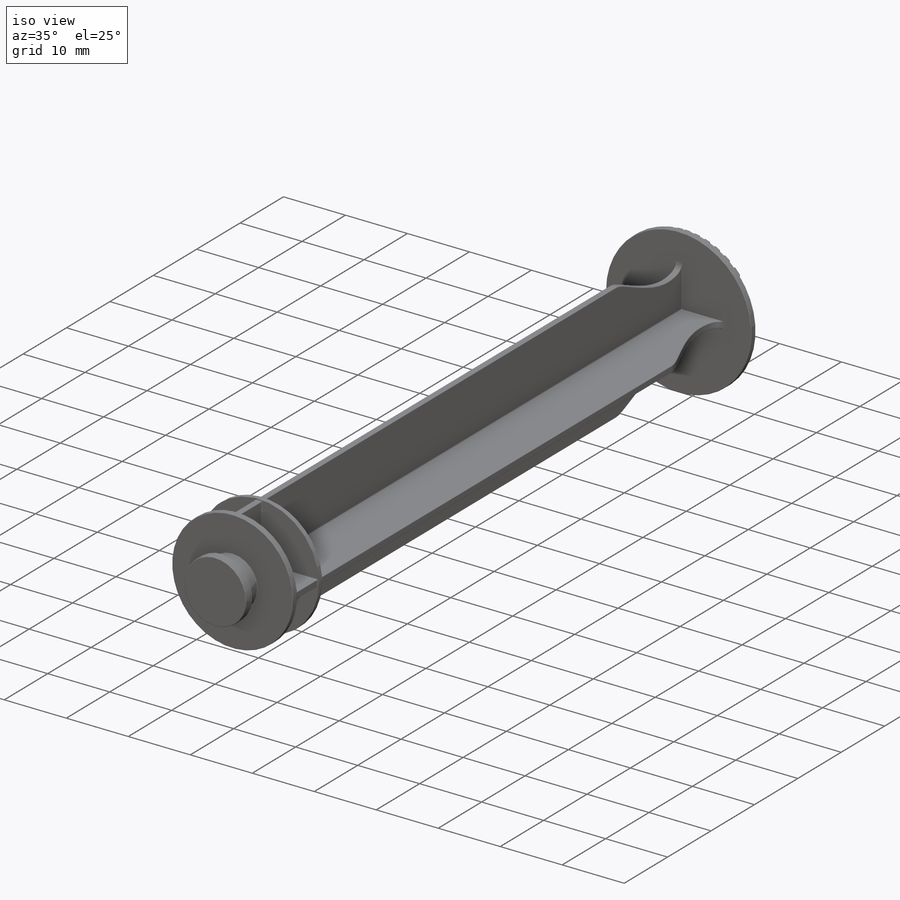
[diagram: iso view]
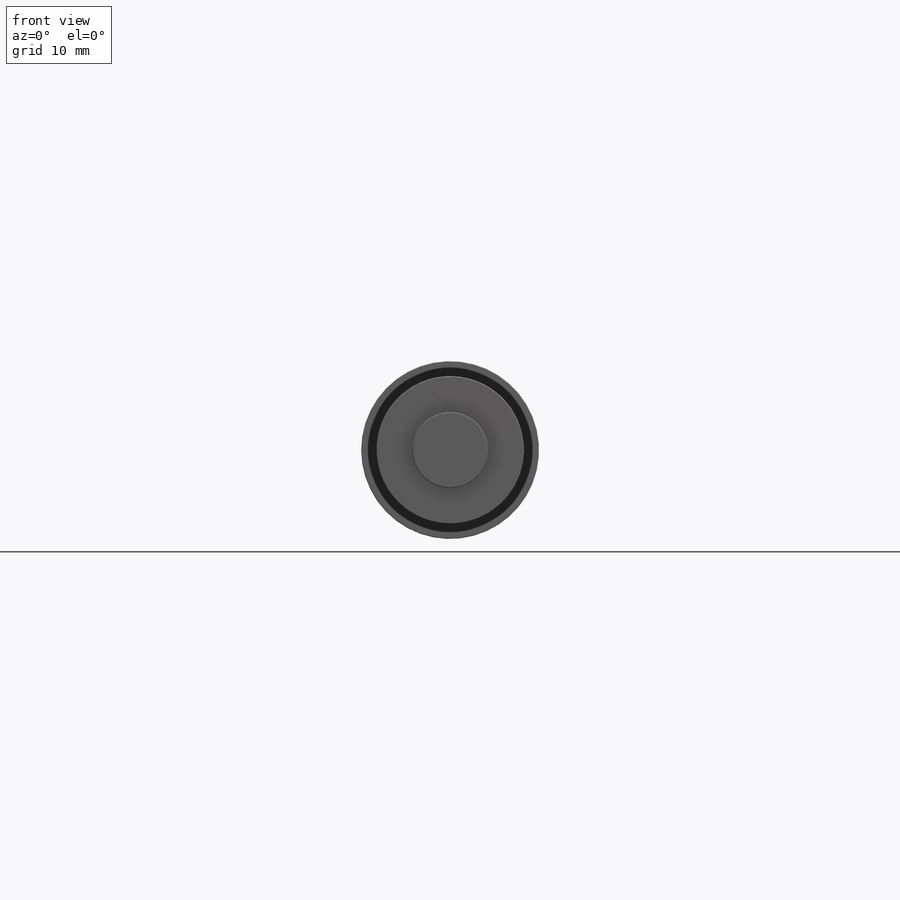
[diagram: front view]
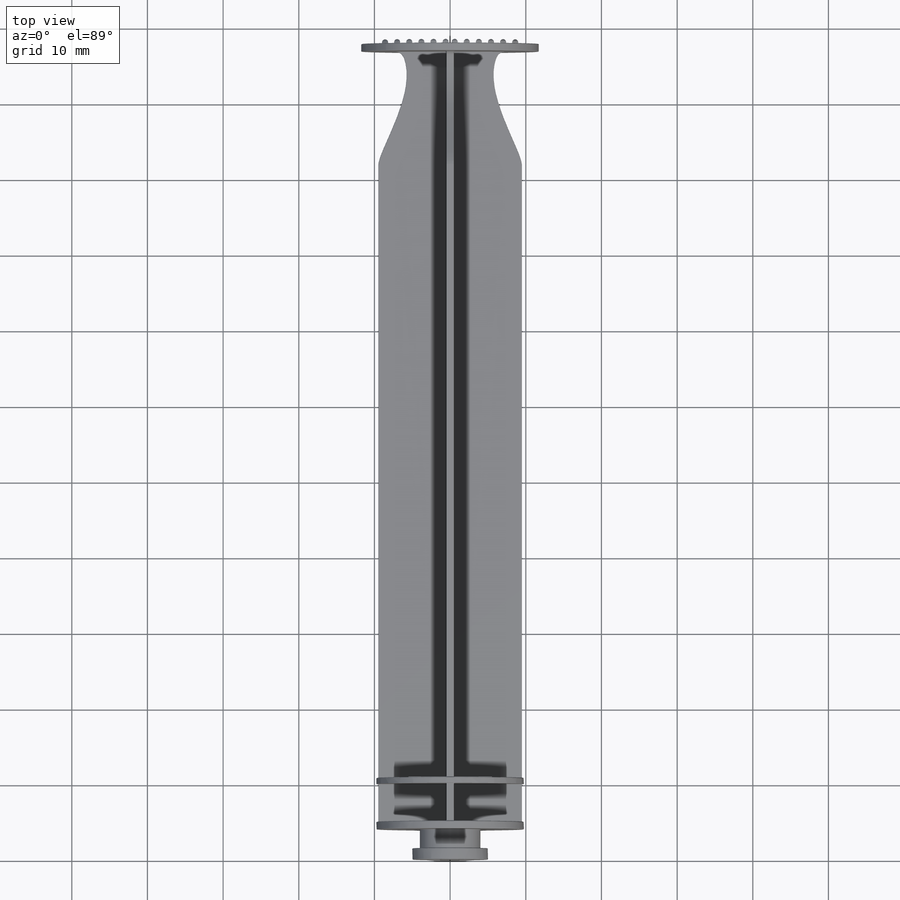
[diagram: top view]
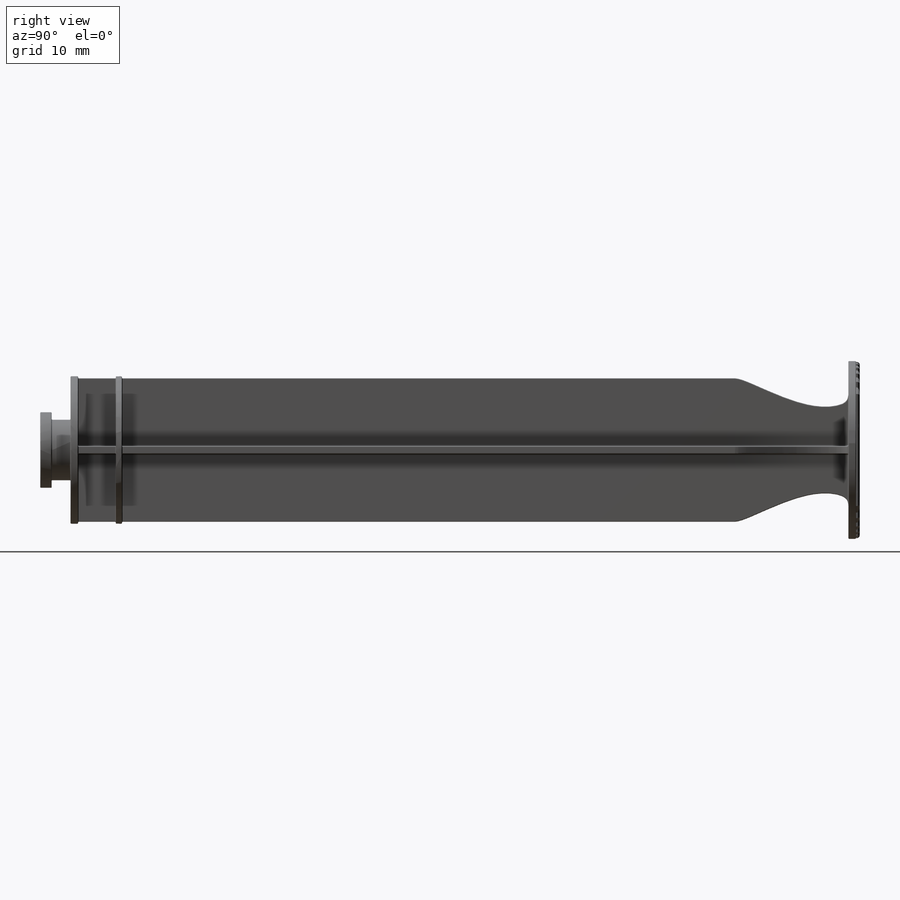
[diagram: right view]
SOLIDWORKS PART (.sldprt)
format: sldprt  version: not decoded by parser v0  size: 921,600 bytes
history: native  units: mm
features: sketch x7, plane x5, fillet x5, extrude x5, material x1, revolve x1, cut_revolve x1 (+8 scaffold rows collapsed)
feature tree (33):
  scaffold x8  (default folders/planes/origin — collapsed)
  material  "PE High Density"
  plane  "front"
  plane  "top"
  plane  "right"
  sketch  "Sketch1"  dims[D1=10.0mm D2=1.5mm D3=8.0mm D4=2.5mm D5=1.0mm D6=19.5mm]
  revolve  "Revolve1"  Angle=360deg
  fillet  "Fillet1"  Radius=0.1mm
  sketch  "Sketch2"  dims[c1.D5=19.0mm c1.D6=0.2mm c1.D1=0.5mm c1.D2=1.0mm c1.D3=0.5mm c1.D4=1.0mm c2.D6=~8.986833mm]
  plane  "Plane1"  Offset=5mm
  sketch  "Sketch3"
  extrude  "Boss-Extrude1"  Depth=0.8mm
  sketch  "Sketch4"  dims[D1=0.0mm D2=0.0mm]
  extrude  "Boss-Extrude2"  Depth=0.8mm
  fillet  "Fillet2"  Radius=0.1mm
  extrude  "Boss-Extrude4"  Depth=96mm
  plane  "Plane2"  Offset=96mm
  sketch  "Sketch5"  dims[D1=23.5mm]
  extrude  "Boss-Extrude5"  Depth=1mm
  sketch  "Sketch6"  dims[D1=15.0mm D2=5.75mm D3=~2.603192mm]
  cut_revolve  "Cut-Revolve2"  Angle=360deg
  fillet  "Fillet3"  Radius=0.1mm
  fillet  "Fillet4"  Radius=0.1mm
  sketch  "Sketch7"  dims[D1=0.4mm D2=0.8mm D3=0.8mm D4=0.8mm D5=0.8mm D6=0.8mm D7=0.8mm D8=0.8mm D9=0.8mm D10=0.8mm D11=0.8mm D12=0.8mm]
  extrude  "Boss-Extrude6"  Depth=0.5mm
  fillet  "Fillet5"  Radius=0.4mm
decode coverage: 18 of 19 modeling features carry decoded parameters
note: ~ marks probable driven/reference dimensions
note: suppression state not decoded; provenance and decode notes live in map.json
